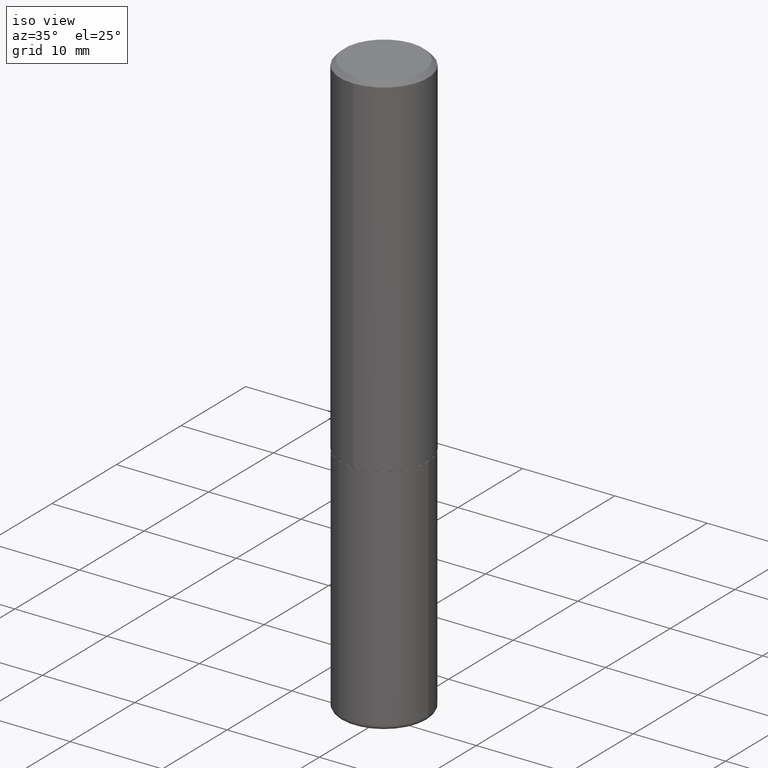
[diagram: clean part render]
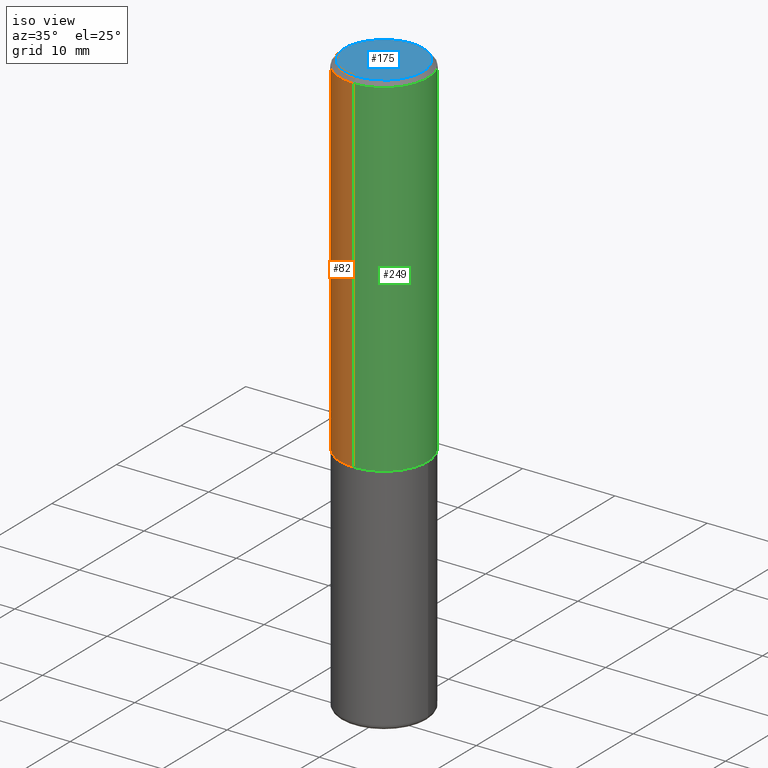
[diagram: same view with three faces highlighted in distinct colors, each labeled with its STEP entity id]
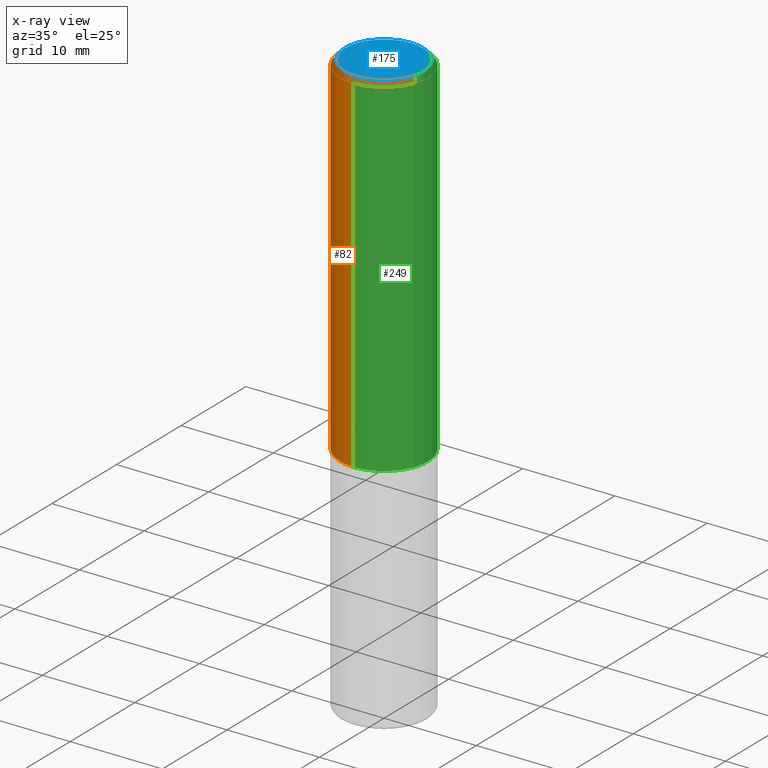
[diagram: x-ray of the same camera — body ghosted, the three highlighted faces saturated]
A machine part, iso view with three faces highlighted in distinct colors.
The next image is the same camera in x-ray (body ghosted, the three faces saturated) — at least one of them is partly hidden behind the body in this view.
Their STEP definitions:

[orange] entity #82 — the highlighted cylindrical surface (partial cylindrical patch) has radius 4.7625 mm, axis along (-0, 0, 1).
#30 = VERTEX_POINT ( 'NONE', #311 ) ;
#31 = DIRECTION ( 'NONE',  ( -6.982962677686265922E-15, -1.000000000000000000, 2.913971193241877611E-15 ) ) ;
#38 = DIRECTION ( 'NONE',  ( -2.444793606782976109E-29, 3.492448262817002669E-15, 1.000000000000000000 ) ) ;
#45 = VECTOR ( 'NONE', #146, 39.37007874015748143 ) ;
#60 = DIRECTION ( 'NONE',  ( -2.444793606782976109E-29, 3.492448262817002669E-15, 1.000000000000000000 ) ) ;
#64 = CARTESIAN_POINT ( 'NONE',  ( -1.309305502066175600E-15, -0.1875000000000000833, 6.548340492781882223E-16 ) ) ;
#82 = ADVANCED_FACE ( 'NONE', ( #380 ), #256, .T. ) ;
#94 = CARTESIAN_POINT ( 'NONE',  ( 0.000000000000000000, 0.000000000000000000, 0.000000000000000000 ) ) ;
#108 = EDGE_CURVE ( 'NONE', #167, #30, #396, .T. ) ;
#133 = EDGE_CURVE ( 'NONE', #323, #30, #184, .T. ) ;
#146 = DIRECTION ( 'NONE',  ( -2.444793606782976109E-29, 3.492448262817002669E-15, 1.000000000000000000 ) ) ;
#162 = AXIS2_PLACEMENT_3D ( 'NONE', #94, #38, #377 ) ;
#167 = VERTEX_POINT ( 'NONE', #400 ) ;
#168 = CIRCLE ( 'NONE', #205, 0.1875000000000001943 ) ;
#180 = LINE ( 'NONE', #207, #45 ) ;
#184 = CIRCLE ( 'NONE', #415, 0.1874999999999999722 ) ;
#193 = CARTESIAN_POINT ( 'NONE',  ( 4.889587213565963568E-31, -6.984896525634020819E-17, -0.02000000000000004205 ) ) ;
#205 = AXIS2_PLACEMENT_3D ( 'NONE', #245, #217, #31 ) ;
#207 = CARTESIAN_POINT ( 'NONE',  ( 1.332267629550188243E-15, 0.1875000000000000833, -6.548340492781882223E-16 ) ) ;
#215 = VECTOR ( 'NONE', #351, 39.37007874015748143 ) ;
#217 = DIRECTION ( 'NONE',  ( -2.444793606782976109E-29, 3.492448262817002669E-15, 1.000000000000000000 ) ) ;
#239 = ORIENTED_EDGE ( 'NONE', *, *, #108, .T. ) ;
#245 = CARTESIAN_POINT ( 'NONE',  ( 3.664745616567681106E-29, -5.235179945962687995E-15, -1.499000000000000110 ) ) ;
#256 = CYLINDRICAL_SURFACE ( 'NONE', #162, 0.1875000000000000833 ) ;
#280 = CARTESIAN_POINT ( 'NONE',  ( 1.309305502066175205E-15, 0.1874999999999999167, -0.02000000000000069431 ) ) ;
#290 = DIRECTION ( 'NONE',  ( -6.982962677686266711E-15, -1.000000000000000000, 3.483106191921935949E-15 ) ) ;
#294 = ORIENTED_EDGE ( 'NONE', *, *, #302, .F. ) ;
#302 = EDGE_CURVE ( 'NONE', #417, #323, #180, .T. ) ;
#311 = CARTESIAN_POINT ( 'NONE',  ( -1.286343374582161379E-15, -0.1875000000000000555, -0.01999999999999938979 ) ) ;
#323 = VERTEX_POINT ( 'NONE', #280 ) ;
#326 = EDGE_CURVE ( 'NONE', #417, #167, #168, .T. ) ;
#328 = EDGE_LOOP ( 'NONE', ( #294, #390, #239, #354 ) ) ;
#351 = DIRECTION ( 'NONE',  ( -2.444793606782976109E-29, 3.492448262817002669E-15, 1.000000000000000000 ) ) ;
#354 = ORIENTED_EDGE ( 'NONE', *, *, #133, .F. ) ;
#375 = CARTESIAN_POINT ( 'NONE',  ( 1.332267629550206781E-15, 0.1874999999999949485, -1.499000000000000554 ) ) ;
#377 = DIRECTION ( 'NONE',  ( -6.982962677686266711E-15, -1.000000000000000000, 3.492448262817002274E-15 ) ) ;
#380 = FACE_OUTER_BOUND ( 'NONE', #328, .T. ) ;
#390 = ORIENTED_EDGE ( 'NONE', *, *, #326, .T. ) ;
#396 = LINE ( 'NONE', #64, #215 ) ;
#400 = CARTESIAN_POINT ( 'NONE',  ( -1.309305502066139509E-15, -0.1875000000000054123, -1.498999999999999444 ) ) ;
#415 = AXIS2_PLACEMENT_3D ( 'NONE', #193, #60, #290 ) ;
#417 = VERTEX_POINT ( 'NONE', #375 ) ;

[blue] entity #175 — the highlighted planar face has unit normal (0, -0, -1).
#2 = CARTESIAN_POINT ( 'NONE',  ( 1.169646248512448412E-15, 0.1674999999999998157, -4.973995980919783120E-16 ) ) ;
#19 = ORIENTED_EDGE ( 'NONE', *, *, #159, .T. ) ;
#21 = CIRCLE ( 'NONE', #220, 0.1674999999999998157 ) ;
#33 = CARTESIAN_POINT ( 'NONE',  ( -1.217738394604445850E-15, -0.1674999999999998157, 7.601560558815852241E-16 ) ) ;
#56 = DIRECTION ( 'NONE',  ( -6.982962677686266711E-15, -1.000000000000000000, 3.492448262817002274E-15 ) ) ;
#71 = DIRECTION ( 'NONE',  ( 6.982962677686265922E-15, 1.000000000000000000, -3.492448262817002669E-15 ) ) ;
#106 = PLANE ( 'NONE',  #342 ) ;
#121 = EDGE_CURVE ( 'NONE', #271, #213, #21, .T. ) ;
#140 = ORIENTED_EDGE ( 'NONE', *, *, #121, .T. ) ;
#144 = DIRECTION ( 'NONE',  ( -2.444793606782976109E-29, 3.492448262817002669E-15, 1.000000000000000000 ) ) ;
#159 = EDGE_CURVE ( 'NONE', #213, #271, #313, .T. ) ;
#175 = ADVANCED_FACE ( 'NONE', ( #234 ), #106, .F. ) ;
#213 = VERTEX_POINT ( 'NONE', #308 ) ;
#220 = AXIS2_PLACEMENT_3D ( 'NONE', #349, #414, #56 ) ;
#234 = FACE_OUTER_BOUND ( 'NONE', #306, .T. ) ;
#271 = VERTEX_POINT ( 'NONE', #33 ) ;
#272 = CARTESIAN_POINT ( 'NONE',  ( -4.282568720966478871E-45, 6.117755563675076877E-31, 1.751709718597379003E-16 ) ) ;
#291 = AXIS2_PLACEMENT_3D ( 'NONE', #272, #144, #312 ) ;
#301 = DIRECTION ( 'NONE',  ( 2.444793606782975829E-29, -3.492448262817002669E-15, -1.000000000000000000 ) ) ;
#306 = EDGE_LOOP ( 'NONE', ( #19, #140 ) ) ;
#308 = CARTESIAN_POINT ( 'NONE',  ( 1.239475875289311907E-15, 0.1674999999999998157, -4.098141121621095221E-16 ) ) ;
#312 = DIRECTION ( 'NONE',  ( -6.982962677686266711E-15, -1.000000000000000000, 3.492448262817002274E-15 ) ) ;
#313 = CIRCLE ( 'NONE', #291, 0.1674999999999998157 ) ;
#342 = AXIS2_PLACEMENT_3D ( 'NONE', #2, #301, #71 ) ;
#349 = CARTESIAN_POINT ( 'NONE',  ( -4.282568720966478871E-45, 6.117755563675076877E-31, 1.751709718597379003E-16 ) ) ;
#414 = DIRECTION ( 'NONE',  ( -2.444793606782976109E-29, 3.492448262817002669E-15, 1.000000000000000000 ) ) ;

[green] entity #249 — the highlighted cylindrical surface (partial cylindrical patch) has radius 4.7625 mm, axis along (-0, 0, 1).
#14 = CIRCLE ( 'NONE', #84, 0.1874999999999999722 ) ;
#26 = CARTESIAN_POINT ( 'NONE',  ( 3.664745616567681106E-29, -5.235179945962687995E-15, -1.499000000000000110 ) ) ;
#30 = VERTEX_POINT ( 'NONE', #311 ) ;
#45 = VECTOR ( 'NONE', #146, 39.37007874015748143 ) ;
#54 = DIRECTION ( 'NONE',  ( -6.982962677686265922E-15, -1.000000000000000000, 2.913971193241877611E-15 ) ) ;
#64 = CARTESIAN_POINT ( 'NONE',  ( -1.309305502066175600E-15, -0.1875000000000000833, 6.548340492781882223E-16 ) ) ;
#79 = CARTESIAN_POINT ( 'NONE',  ( 4.889587213565963568E-31, -6.984896525634020819E-17, -0.02000000000000004205 ) ) ;
#84 = AXIS2_PLACEMENT_3D ( 'NONE', #79, #398, #241 ) ;
#101 = EDGE_LOOP ( 'NONE', ( #242, #416, #264, #174 ) ) ;
#108 = EDGE_CURVE ( 'NONE', #167, #30, #396, .T. ) ;
#131 = EDGE_CURVE ( 'NONE', #167, #417, #361, .T. ) ;
#139 = CARTESIAN_POINT ( 'NONE',  ( 0.000000000000000000, 0.000000000000000000, 0.000000000000000000 ) ) ;
#142 = CYLINDRICAL_SURFACE ( 'NONE', #176, 0.1875000000000000833 ) ;
#146 = DIRECTION ( 'NONE',  ( -2.444793606782976109E-29, 3.492448262817002669E-15, 1.000000000000000000 ) ) ;
#153 = EDGE_CURVE ( 'NONE', #30, #323, #14, .T. ) ;
#167 = VERTEX_POINT ( 'NONE', #400 ) ;
#174 = ORIENTED_EDGE ( 'NONE', *, *, #108, .F. ) ;
#176 = AXIS2_PLACEMENT_3D ( 'NONE', #139, #333, #391 ) ;
#180 = LINE ( 'NONE', #207, #45 ) ;
#207 = CARTESIAN_POINT ( 'NONE',  ( 1.332267629550188243E-15, 0.1875000000000000833, -6.548340492781882223E-16 ) ) ;
#215 = VECTOR ( 'NONE', #351, 39.37007874015748143 ) ;
#216 = FACE_OUTER_BOUND ( 'NONE', #101, .T. ) ;
#241 = DIRECTION ( 'NONE',  ( -6.982962677686266711E-15, -1.000000000000000000, 3.483106191921935949E-15 ) ) ;
#242 = ORIENTED_EDGE ( 'NONE', *, *, #131, .T. ) ;
#244 = AXIS2_PLACEMENT_3D ( 'NONE', #26, #411, #54 ) ;
#249 = ADVANCED_FACE ( 'NONE', ( #216 ), #142, .T. ) ;
#264 = ORIENTED_EDGE ( 'NONE', *, *, #153, .F. ) ;
#280 = CARTESIAN_POINT ( 'NONE',  ( 1.309305502066175205E-15, 0.1874999999999999167, -0.02000000000000069431 ) ) ;
#302 = EDGE_CURVE ( 'NONE', #417, #323, #180, .T. ) ;
#311 = CARTESIAN_POINT ( 'NONE',  ( -1.286343374582161379E-15, -0.1875000000000000555, -0.01999999999999938979 ) ) ;
#323 = VERTEX_POINT ( 'NONE', #280 ) ;
#333 = DIRECTION ( 'NONE',  ( -2.444793606782976109E-29, 3.492448262817002669E-15, 1.000000000000000000 ) ) ;
#351 = DIRECTION ( 'NONE',  ( -2.444793606782976109E-29, 3.492448262817002669E-15, 1.000000000000000000 ) ) ;
#361 = CIRCLE ( 'NONE', #244, 0.1875000000000001943 ) ;
#375 = CARTESIAN_POINT ( 'NONE',  ( 1.332267629550206781E-15, 0.1874999999999949485, -1.499000000000000554 ) ) ;
#391 = DIRECTION ( 'NONE',  ( -6.982962677686266711E-15, -1.000000000000000000, 3.492448262817002274E-15 ) ) ;
#396 = LINE ( 'NONE', #64, #215 ) ;
#398 = DIRECTION ( 'NONE',  ( -2.444793606782976109E-29, 3.492448262817002669E-15, 1.000000000000000000 ) ) ;
#400 = CARTESIAN_POINT ( 'NONE',  ( -1.309305502066139509E-15, -0.1875000000000054123, -1.498999999999999444 ) ) ;
#411 = DIRECTION ( 'NONE',  ( -2.444793606782976109E-29, 3.492448262817002669E-15, 1.000000000000000000 ) ) ;
#416 = ORIENTED_EDGE ( 'NONE', *, *, #302, .T. ) ;
#417 = VERTEX_POINT ( 'NONE', #375 ) ;